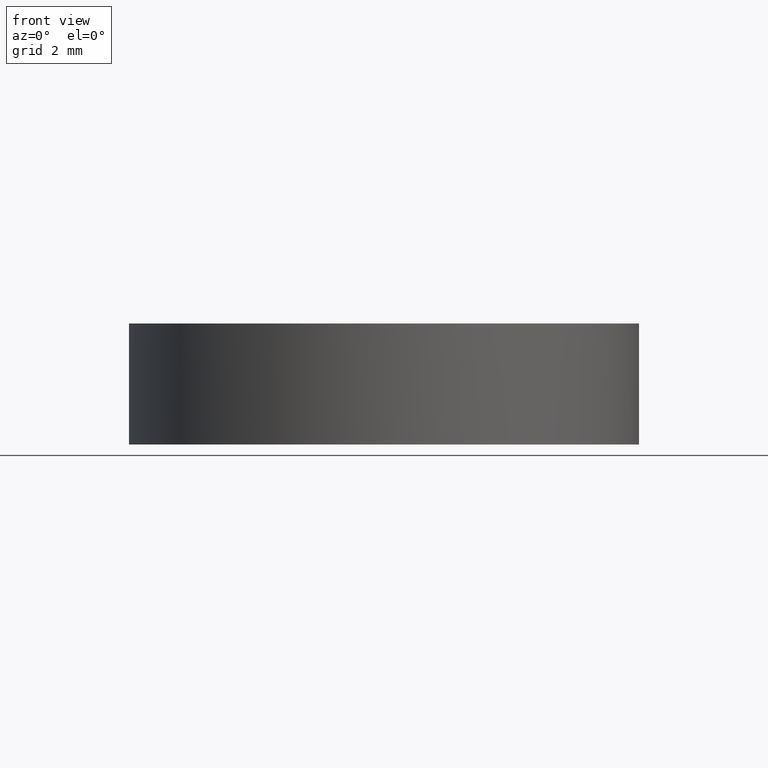
[diagram: clean part render]
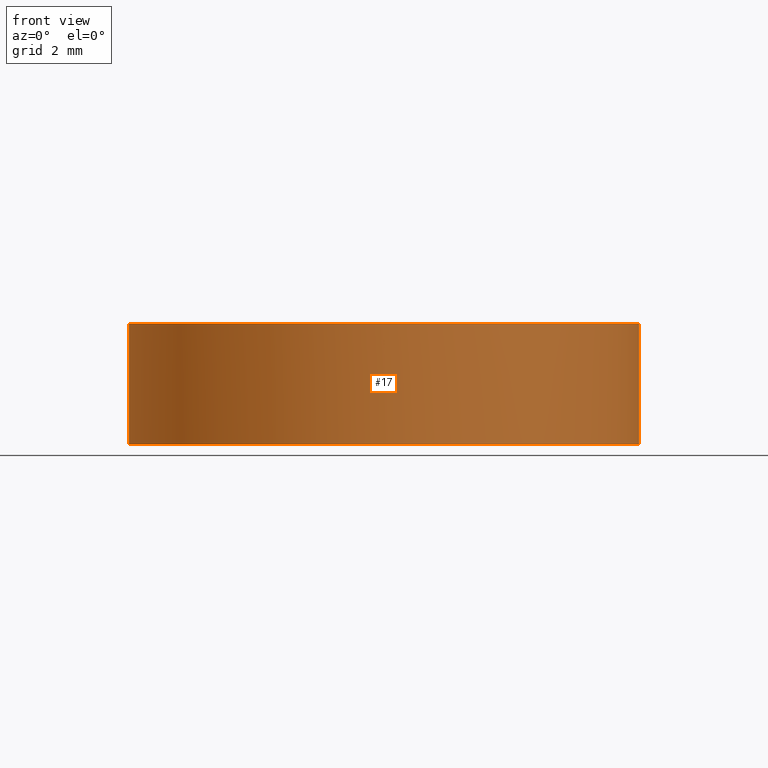
[diagram: same view with one face highlighted and labeled with its STEP entity id]
A machine part, front view. The second image highlights one B-rep face of the part: STEP entity #17.
In plain terms, the highlighted cylindrical surface (partial cylindrical patch) has radius 6.35 mm, axis along (0, 0, 1).
Its self-contained STEP definition (entity closure, byte-faithful):
#9 = AXIS2_PLACEMENT_3D ( 'NONE', #12, #66, #67 ) ;
#12 = CARTESIAN_POINT ( 'NONE',  ( 2.498001805406600200E-016, 1.221245327087670000E-015, 2.799999999999999800 ) ) ;
#15 = EDGE_CURVE ( 'NONE', #176, #182, #97, .T. ) ;
#16 = EDGE_LOOP ( 'NONE', ( #212, #218, #48, #180, #109 ) ) ;
#17 = ADVANCED_FACE ( 'NONE', ( #128 ), #71, .T. ) ;
#23 = LINE ( 'NONE', #154, #81 ) ;
#27 = EDGE_CURVE ( 'NONE', #162, #176, #229, .T. ) ;
#29 = DIRECTION ( 'NONE',  ( 1.000000000000000000, 0.0000000000000000000, 0.0000000000000000000 ) ) ;
#32 = CARTESIAN_POINT ( 'NONE',  ( 2.498001805406600200E-016, 1.221245327087670000E-015, -0.2119915998235260000 ) ) ;
#36 = VERTEX_POINT ( 'NONE', #69 ) ;
#40 = CARTESIAN_POINT ( 'NONE',  ( 6.349999999999999600, 1.221245327087670000E-015, 2.799999999999999800 ) ) ;
#41 = CARTESIAN_POINT ( 'NONE',  ( 2.498001805406600200E-016, 1.221245327087670000E-015, -0.2119915998235260000 ) ) ;
#48 = ORIENTED_EDGE ( 'NONE', *, *, #165, .T. ) ;
#54 = AXIS2_PLACEMENT_3D ( 'NONE', #41, #113, #184 ) ;
#65 = AXIS2_PLACEMENT_3D ( 'NONE', #209, #137, #29 ) ;
#66 = DIRECTION ( 'NONE',  ( -0.0000000000000000000, -0.0000000000000000000, -1.000000000000000000 ) ) ;
#67 = DIRECTION ( 'NONE',  ( 1.000000000000000000, 0.0000000000000000000, 0.0000000000000000000 ) ) ;
#69 = CARTESIAN_POINT ( 'NONE',  ( -3.640864328147872700E-014, -6.350000000000084900, -0.2119915998235293900 ) ) ;
#71 = CYLINDRICAL_SURFACE ( 'NONE', #65, 6.349999999999999600 ) ;
#81 = VECTOR ( 'NONE', #198, 1000.000000000000000 ) ;
#97 = CIRCLE ( 'NONE', #9, 6.349999999999999600 ) ;
#109 = ORIENTED_EDGE ( 'NONE', *, *, #15, .T. ) ;
#113 = DIRECTION ( 'NONE',  ( 0.0000000000000000000, 0.0000000000000000000, 1.000000000000000000 ) ) ;
#117 = CIRCLE ( 'NONE', #118, 6.349999999999999600 ) ;
#118 = AXIS2_PLACEMENT_3D ( 'NONE', #32, #158, #177 ) ;
#125 = EDGE_CURVE ( 'NONE', #200, #182, #23, .T. ) ;
#128 = FACE_OUTER_BOUND ( 'NONE', #16, .T. ) ;
#134 = VECTOR ( 'NONE', #227, 1000.000000000000000 ) ;
#137 = DIRECTION ( 'NONE',  ( 0.0000000000000000000, 0.0000000000000000000, 1.000000000000000000 ) ) ;
#151 = CARTESIAN_POINT ( 'NONE',  ( 6.349999999999999600, 1.221245327087670000E-015, -0.2119915998235260000 ) ) ;
#154 = CARTESIAN_POINT ( 'NONE',  ( -6.349999999999999600, 1.998896044546239400E-015, -0.2119915998235260000 ) ) ;
#158 = DIRECTION ( 'NONE',  ( 0.0000000000000000000, 0.0000000000000000000, 1.000000000000000000 ) ) ;
#162 = VERTEX_POINT ( 'NONE', #215 ) ;
#165 = EDGE_CURVE ( 'NONE', #36, #162, #117, .T. ) ;
#172 = CARTESIAN_POINT ( 'NONE',  ( -6.349999999999999600, 1.998896044546239400E-015, 2.799999999999999800 ) ) ;
#176 = VERTEX_POINT ( 'NONE', #40 ) ;
#177 = DIRECTION ( 'NONE',  ( 1.000000000000000000, 0.0000000000000000000, 0.0000000000000000000 ) ) ;
#180 = ORIENTED_EDGE ( 'NONE', *, *, #27, .T. ) ;
#182 = VERTEX_POINT ( 'NONE', #172 ) ;
#184 = DIRECTION ( 'NONE',  ( 1.000000000000000000, 0.0000000000000000000, 0.0000000000000000000 ) ) ;
#189 = CIRCLE ( 'NONE', #54, 6.349999999999999600 ) ;
#195 = CARTESIAN_POINT ( 'NONE',  ( -6.349999999999999600, 1.998896044546239400E-015, -0.2119915998235260000 ) ) ;
#198 = DIRECTION ( 'NONE',  ( 0.0000000000000000000, 0.0000000000000000000, 1.000000000000000000 ) ) ;
#200 = VERTEX_POINT ( 'NONE', #195 ) ;
#201 = EDGE_CURVE ( 'NONE', #200, #36, #189, .T. ) ;
#209 = CARTESIAN_POINT ( 'NONE',  ( 2.498001805406600200E-016, 1.221245327087670000E-015, -0.2119915998235260000 ) ) ;
#212 = ORIENTED_EDGE ( 'NONE', *, *, #125, .F. ) ;
#215 = CARTESIAN_POINT ( 'NONE',  ( 6.349999999999999600, 1.221245327087670000E-015, -0.2119915998235260000 ) ) ;
#218 = ORIENTED_EDGE ( 'NONE', *, *, #201, .T. ) ;
#227 = DIRECTION ( 'NONE',  ( 0.0000000000000000000, 0.0000000000000000000, 1.000000000000000000 ) ) ;
#229 = LINE ( 'NONE', #151, #134 ) ;